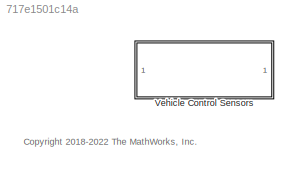
MODEL slx_717e1501c14a
KIND library
CONFIG AbsTol = auto
CONFIG EnableMultiTasking = off
CONFIG FixedStep = auto
CONFIG MaxStep = auto
CONFIG MinStep = auto
CONFIG RelTol = 1e-3
CONFIG SampleTimeConstraint = Unconstrained
CONFIG SolverName = VariableStepAuto
CONFIG StartTime = 0.0
CONFIG StopTime = 10.0
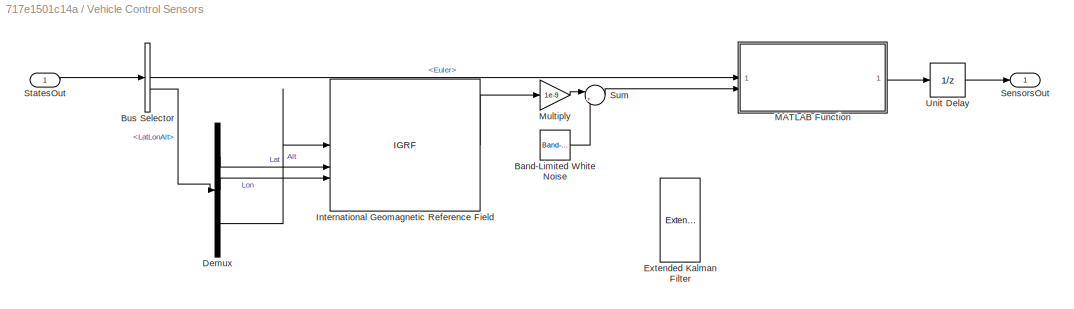
BLOCK [SubSystem] Vehicle Control Sensors
BLOCK [Reference] Vehicle Control Sensors/Band-Limited White Noise  REF=simulink/Sources/Band-Limited
White Noise
  SourceBlock = simulink/Sources/Band-Limited\nWhite Noise
  SourceType = Band-Limited White Noise.
BLOCK [BusSelector] Vehicle Control Sensors/Bus Selector
  OutputSignals = Euler,LatLonAlt
BLOCK [Demux] Vehicle Control Sensors/Demux
  Outputs = 3
BLOCK [Reference] Vehicle Control Sensors/Extended Kalman Filter  REF=sharedTrackingLibrary/Extended Kalman Filter
  LibrarySourceBlock = cstblocks/State Estimation/Extended Kalman Filter
  SourceBlock = sharedTrackingLibrary/Extended Kalman Filter
  SourceType = Extended Kalman Filter
BLOCK [IGRF] Vehicle Control Sensors/International Geomagnetic Reference Field
  AttributesFormatString = %<generation>
  day = 1
  month = January
  sv_out = off
  time_in = off
  year = 2020
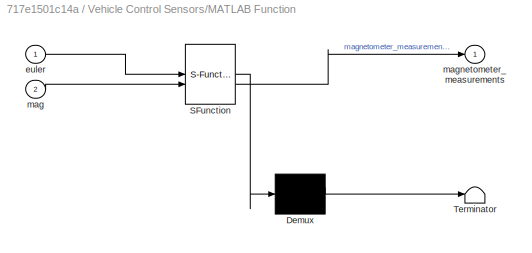
BLOCK [SubSystem] Vehicle Control Sensors/MATLAB Function
  ErrorFcn = Stateflow.Translate.translate
  PermitHierarchicalResolution = ExplicitOnly
  SFBlockType = MATLAB Function
  TreatAsAtomicUnit = on
BLOCK [Demux] Vehicle Control Sensors/MATLAB Function/ Demux 
  Outputs = 1
BLOCK [S-Function] Vehicle Control Sensors/MATLAB Function/ SFunction 
  EnableBusSupport = off
  FunctionName = sf_sfun
  PortCounts = [2 2]
  SFcnIsStateOwnerBlock = off
  SFunctionDeploymentMode = off
  Tag = Stateflow S-Function 2
BLOCK [Terminator] Vehicle Control Sensors/MATLAB Function/ Terminator 
BLOCK [Inport] Vehicle Control Sensors/MATLAB Function/euler
BLOCK [Inport] Vehicle Control Sensors/MATLAB Function/mag
  Port = 2
BLOCK [Outport] Vehicle Control Sensors/MATLAB Function/magnetometer_measurements
BLOCK [Gain] Vehicle Control Sensors/Multiply
  Gain = 1e-9
BLOCK [Outport] Vehicle Control Sensors/SensorsOut
  OutDataTypeStr = double
  VectorParamsAs1DForOutWhenUnconnected = off
BLOCK [Inport] Vehicle Control Sensors/StatesOut
  OutDataTypeStr = Bus: StatesOutBus
BLOCK [Sum] Vehicle Control Sensors/Sum
  Inputs = |++
BLOCK [UnitDelay] Vehicle Control Sensors/Unit Delay
  HasFrameUpgradeWarning = on
  SampleTime = CubeSatTimeStep
ANNOTATION (root): <copyright redacted>
LINE Vehicle Control Sensors/Band-Limited White Noise:1 -> Vehicle Control Sensors/Sum:2
LINE Vehicle Control Sensors/Bus Selector:1 -> Vehicle Control Sensors/MATLAB Function:1
LINE Vehicle Control Sensors/Bus Selector:2 -> Vehicle Control Sensors/Demux:1
LINE Vehicle Control Sensors/Demux:1 -> Vehicle Control Sensors/International Geomagnetic Reference Field:2
LINE Vehicle Control Sensors/Demux:2 -> Vehicle Control Sensors/International Geomagnetic Reference Field:3
LINE Vehicle Control Sensors/Demux:3 -> Vehicle Control Sensors/International Geomagnetic Reference Field:1
LINE Vehicle Control Sensors/International Geomagnetic Reference Field:1 -> Vehicle Control Sensors/Multiply:1
LINE Vehicle Control Sensors/MATLAB Function:1 -> Vehicle Control Sensors/Unit Delay:1
LINE Vehicle Control Sensors/Multiply:1 -> Vehicle Control Sensors/Sum:1
LINE Vehicle Control Sensors/StatesOut:1 -> Vehicle Control Sensors/Bus Selector:1
LINE Vehicle Control Sensors/Sum:1 -> Vehicle Control Sensors/MATLAB Function:2
LINE Vehicle Control Sensors/Unit Delay:1 -> Vehicle Control Sensors/SensorsOut:1
CHART Vehicle Control Sensors/MATLAB Function states=1 transitions=1
  STATE_LABEL 'eML_blk_kernel()'
  STATE_LABEL "SCRIPT:\nfunction magnetometer_measurements = fcn(euler, mag)\n    q = quaternion(euler', 'eulerd', 'zyx', 'frame');\n    magnetometer_measurements = rotateframe(q, mag');\n"
CHART  states=0 transitions=0
